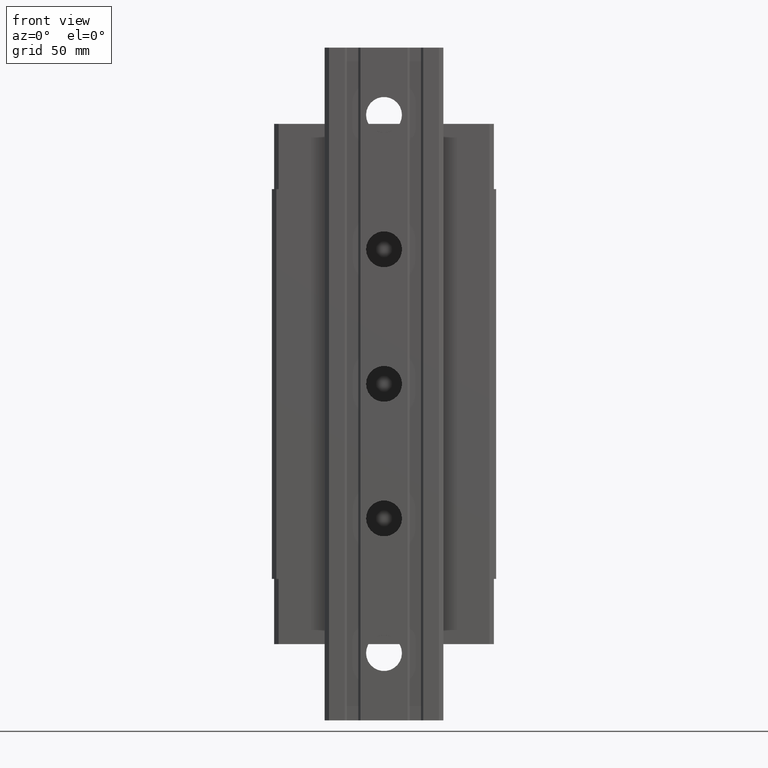
[diagram: clean part render]
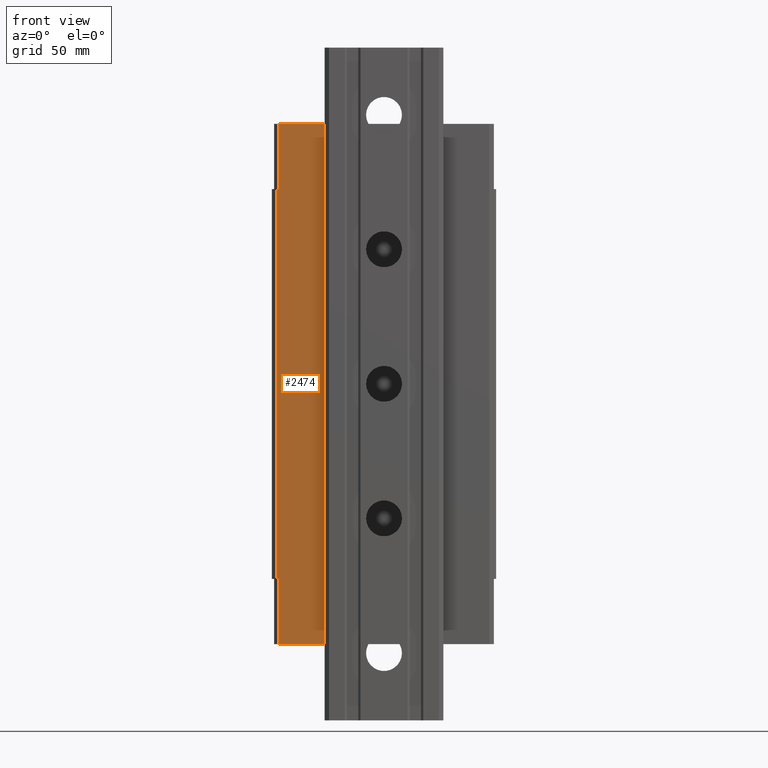
[diagram: same view with one face highlighted and labeled with its STEP entity id]
A machine part, front view. The second image highlights one B-rep face of the part: STEP entity #2474.
In plain terms, the highlighted planar face has unit normal (0, -1, 0).
Its self-contained STEP definition (entity closure, byte-faithful):
#249=DIRECTION('',(9.999999999555E-1,9.431864324811E-6,0.E0));
#250=VECTOR('',#249,1.000016506056E0);
#251=CARTESIAN_POINT('',(-4.800002143149E1,-5.999999764199E1,-8.69E1));
#252=LINE('',#251,#250);
#601=DIRECTION('',(0.E0,0.E0,-1.E0));
#602=VECTOR('',#601,2.32E2);
#603=CARTESIAN_POINT('',(-2.649999882100E1,-5.999998113596E1,1.16E2));
#604=LINE('',#603,#602);
#605=DIRECTION('',(-1.E0,0.E0,0.E0));
#606=VECTOR('',#605,2.050001317848E1);
#607=CARTESIAN_POINT('',(-2.649999882100E1,-5.999998113596E1,-1.16E2));
#608=LINE('',#607,#606);
#609=DIRECTION('',(3.391861357694E-9,-3.391841611311E-9,1.E0));
#610=VECTOR('',#609,1.738E2);
#611=CARTESIAN_POINT('',(-4.800002143149E1,-5.999999764199E1,-8.69E1));
#612=LINE('',#611,#610);
#613=DIRECTION('',(9.999999999659E-1,8.252837327133E-6,0.E0));
#614=VECTOR('',#613,1.000021811564E0);
#615=CARTESIAN_POINT('',(-4.800002084198E1,-5.999999823150E1,8.69E1));
#616=LINE('',#615,#614);
#617=DIRECTION('',(-3.443819774139E-7,2.633510953715E-7,9.999999999999E-1));
#618=VECTOR('',#617,2.91E1);
#619=CARTESIAN_POINT('',(-4.699999903045E1,-5.999998997848E1,8.69E1));
#620=LINE('',#619,#618);
#621=DIRECTION('',(1.E0,5.751229612930E-8,0.E0));
#622=VECTOR('',#621,2.050001023097E1);
#623=CARTESIAN_POINT('',(-4.700000905197E1,-5.999998231496E1,1.16E2));
#624=LINE('',#623,#622);
#625=DIRECTION('',(-2.430927198675E-7,2.430932924526E-7,-9.999999999999E-1));
#626=VECTOR('',#625,2.91E1);
#627=CARTESIAN_POINT('',(-4.700000492548E1,-5.999998820997E1,-8.69E1));
#628=LINE('',#627,#626);
#1417=CARTESIAN_POINT('',(-4.800002143149E1,-5.999999764199E1,-8.69E1));
#1418=VERTEX_POINT('',#1417);
#1419=CARTESIAN_POINT('',(-4.700000492548E1,-5.999998820997E1,-8.69E1));
#1420=VERTEX_POINT('',#1419);
#1463=CARTESIAN_POINT('',(-4.699999903045E1,-5.999998997848E1,8.69E1));
#1464=VERTEX_POINT('',#1463);
#1465=CARTESIAN_POINT('',(-4.800002084198E1,-5.999999823150E1,8.69E1));
#1466=VERTEX_POINT('',#1465);
#1503=CARTESIAN_POINT('',(-2.649999882100E1,-5.999998113596E1,1.16E2));
#1504=VERTEX_POINT('',#1503);
#1505=CARTESIAN_POINT('',(-4.700000905197E1,-5.999998231496E1,1.16E2));
#1506=VERTEX_POINT('',#1505);
#1513=CARTESIAN_POINT('',(-2.649999882100E1,-5.999998113596E1,-1.16E2));
#1514=VERTEX_POINT('',#1513);
#1519=CARTESIAN_POINT('',(-4.700001199948E1,-5.999998113596E1,-1.16E2));
#1520=VERTEX_POINT('',#1519);
#2457=CARTESIAN_POINT('',(-4.800001907349E1,-6.E1,-8.69E1));
#2458=DIRECTION('',(0.E0,-1.E0,0.E0));
#2459=DIRECTION('',(1.E0,0.E0,0.E0));
#2460=AXIS2_PLACEMENT_3D('',#2457,#2458,#2459);
#2461=PLANE('',#2460);
#2462=ORIENTED_EDGE('',*,*,#2347,.T.);
#2463=ORIENTED_EDGE('',*,*,#2365,.T.);
#2465=ORIENTED_EDGE('',*,*,#2464,.F.);
#2466=ORIENTED_EDGE('',*,*,#2026,.F.);
#2468=ORIENTED_EDGE('',*,*,#2467,.T.);
#2469=ORIENTED_EDGE('',*,*,#2213,.T.);
#2470=ORIENTED_EDGE('',*,*,#2451,.T.);
#2471=ORIENTED_EDGE('',*,*,#2311,.T.);
#2472=EDGE_LOOP('',(#2462,#2463,#2465,#2466,#2468,#2469,#2470,#2471));
#2473=FACE_OUTER_BOUND('',#2472,.F.);
#2474=ADVANCED_FACE('',(#2473),#2461,.T.);
#2026=EDGE_CURVE('',#1418,#1420,#252,.T.);
#2213=EDGE_CURVE('',#1466,#1464,#616,.T.);
#2311=EDGE_CURVE('',#1506,#1504,#624,.T.);
#2347=EDGE_CURVE('',#1504,#1514,#604,.T.);
#2365=EDGE_CURVE('',#1514,#1520,#608,.T.);
#2451=EDGE_CURVE('',#1464,#1506,#620,.T.);
#2464=EDGE_CURVE('',#1420,#1520,#628,.T.);
#2467=EDGE_CURVE('',#1418,#1466,#612,.T.);